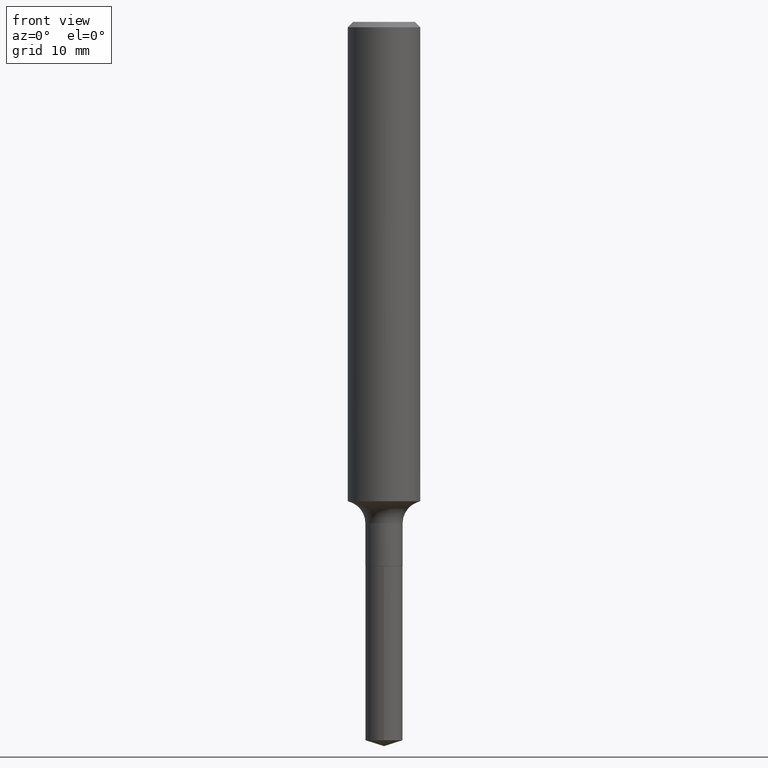
[diagram: clean part render]
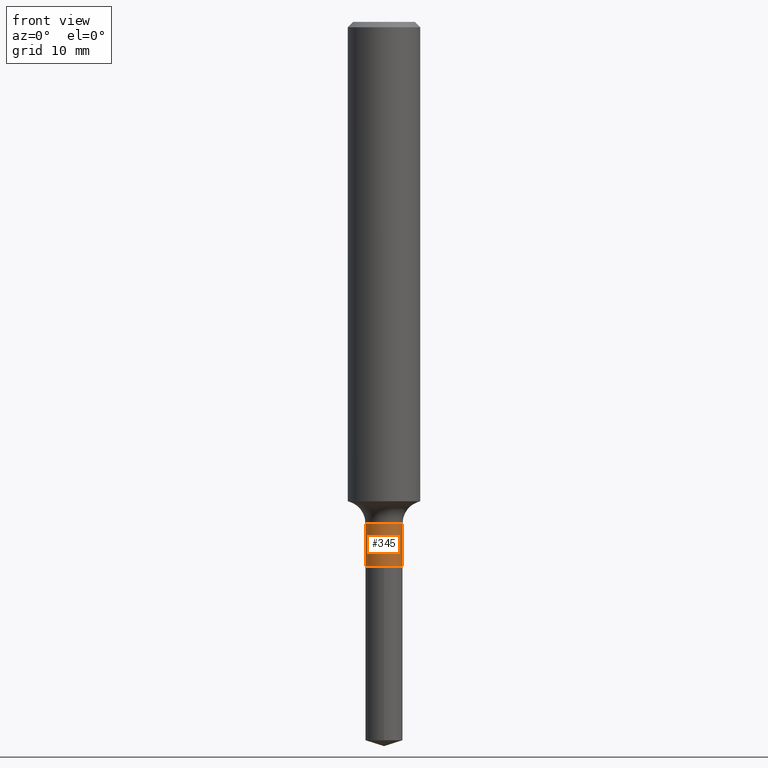
[diagram: same view with one face highlighted and labeled with its STEP entity id]
A machine part, front view. The second image highlights one B-rep face of the part: STEP entity #345.
In plain terms, the highlighted cylindrical surface (edge-blend (fillet) strip) has radius 1.6319 mm, axis along (-0, 0, 1).
Its self-contained STEP definition (entity closure, byte-faithful):
#4 = CARTESIAN_POINT ( 'NONE',  ( 0.06424999999999997380, -6.491362105177175250E-15, -1.730700000000000127 ) ) ;
#25 = VECTOR ( 'NONE', #236, 39.37007874015748143 ) ;
#43 = CYLINDRICAL_SURFACE ( 'NONE', #445, 0.06424999999999998768 ) ;
#44 = CARTESIAN_POINT ( 'NONE',  ( 4.592590418015686246E-29, -6.557001954347427728E-15, -1.878000000000000114 ) ) ;
#50 = VERTEX_POINT ( 'NONE', #259 ) ;
#67 = CARTESIAN_POINT ( 'NONE',  ( -0.06424999999999998768, 4.565237077258642819E-16, -3.160415795488776479E-30 ) ) ;
#78 = CARTESIAN_POINT ( 'NONE',  ( -0.06424999999999998768, -5.843330646015765814E-15, -1.878000000000000114 ) ) ;
#80 = CARTESIAN_POINT ( 'NONE',  ( 0.000000000000000000, 0.000000000000000000, 0.000000000000000000 ) ) ;
#95 = VERTEX_POINT ( 'NONE', #78 ) ;
#112 = ORIENTED_EDGE ( 'NONE', *, *, #426, .F. ) ;
#119 = DIRECTION ( 'NONE',  ( -2.445468806185136597E-29, 3.491481338843145583E-15, 1.000000000000000000 ) ) ;
#189 = CARTESIAN_POINT ( 'NONE',  ( 4.232372862864616324E-29, -6.042706753135832267E-15, -1.730700000000000127 ) ) ;
#191 = DIRECTION ( 'NONE',  ( -2.445468806185136597E-29, 3.491481338843145583E-15, 1.000000000000000000 ) ) ;
#195 = DIRECTION ( 'NONE',  ( -2.445468806185136597E-29, 3.491481338843145583E-15, 1.000000000000000000 ) ) ;
#218 = CARTESIAN_POINT ( 'NONE',  ( 0.06424999999999998768, -4.486553520413425888E-16, 3.132943578448888130E-30 ) ) ;
#220 = EDGE_CURVE ( 'NONE', #475, #226, #351, .T. ) ;
#226 = VERTEX_POINT ( 'NONE', #4 ) ;
#230 = DIRECTION ( 'NONE',  ( 1.000000000000000000, -6.982962677686270655E-15, 0.000000000000000000 ) ) ;
#236 = DIRECTION ( 'NONE',  ( -2.445468806185136877E-29, 3.491481338843145188E-15, 1.000000000000000000 ) ) ;
#259 = CARTESIAN_POINT ( 'NONE',  ( 0.06424999999999998768, -7.005657306388770712E-15, -1.878000000000000114 ) ) ;
#260 = DIRECTION ( 'NONE',  ( 1.000000000000000000, -6.982962677686272233E-15, 0.000000000000000000 ) ) ;
#267 = LINE ( 'NONE', #67, #363 ) ;
#275 = DIRECTION ( 'NONE',  ( -2.445468806185136877E-29, 3.491481338843145188E-15, 1.000000000000000000 ) ) ;
#278 = AXIS2_PLACEMENT_3D ( 'NONE', #44, #119, #230 ) ;
#290 = ORIENTED_EDGE ( 'NONE', *, *, #440, .T. ) ;
#294 = AXIS2_PLACEMENT_3D ( 'NONE', #189, #191, #260 ) ;
#334 = ORIENTED_EDGE ( 'NONE', *, *, #220, .F. ) ;
#345 = ADVANCED_FACE ( 'NONE', ( #392 ), #43, .T. ) ;
#351 = CIRCLE ( 'NONE', #294, 0.06424999999999997380 ) ;
#354 = DIRECTION ( 'NONE',  ( 1.000000000000000000, -6.982962677686267499E-15, 4.876176775795935793E-29 ) ) ;
#363 = VECTOR ( 'NONE', #275, 39.37007874015748143 ) ;
#368 = EDGE_CURVE ( 'NONE', #95, #50, #370, .T. ) ;
#370 = CIRCLE ( 'NONE', #278, 0.06424999999999998768 ) ;
#392 = FACE_OUTER_BOUND ( 'NONE', #398, .T. ) ;
#398 = EDGE_LOOP ( 'NONE', ( #112, #402, #290, #334 ) ) ;
#402 = ORIENTED_EDGE ( 'NONE', *, *, #368, .T. ) ;
#411 = LINE ( 'NONE', #218, #25 ) ;
#426 = EDGE_CURVE ( 'NONE', #95, #475, #267, .T. ) ;
#440 = EDGE_CURVE ( 'NONE', #50, #226, #411, .T. ) ;
#445 = AXIS2_PLACEMENT_3D ( 'NONE', #80, #195, #354 ) ;
#458 = CARTESIAN_POINT ( 'NONE',  ( -0.06424999999999997380, -5.843330646015765814E-15, -1.730700000000000127 ) ) ;
#475 = VERTEX_POINT ( 'NONE', #458 ) ;